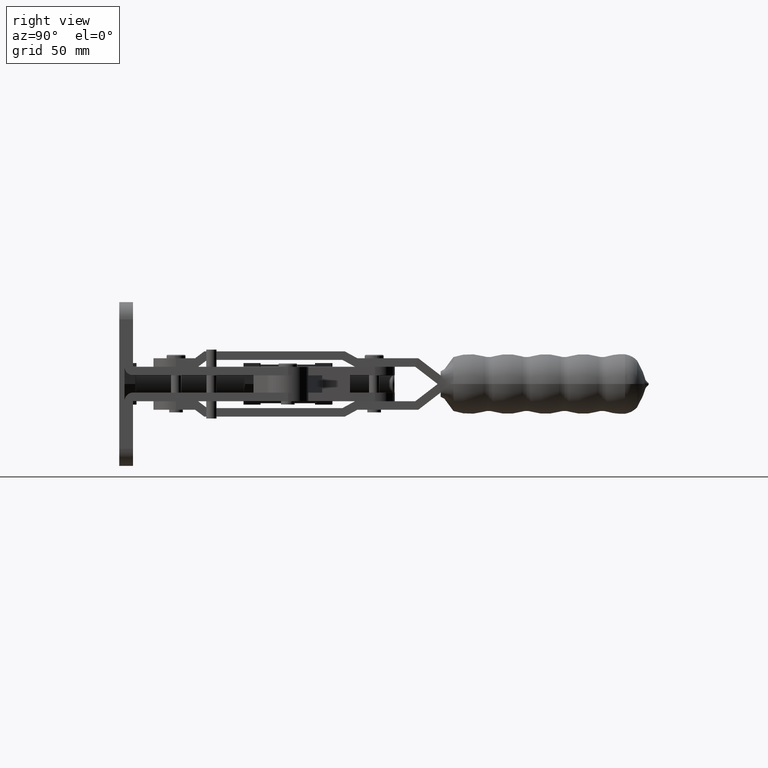
[diagram: clean part render]
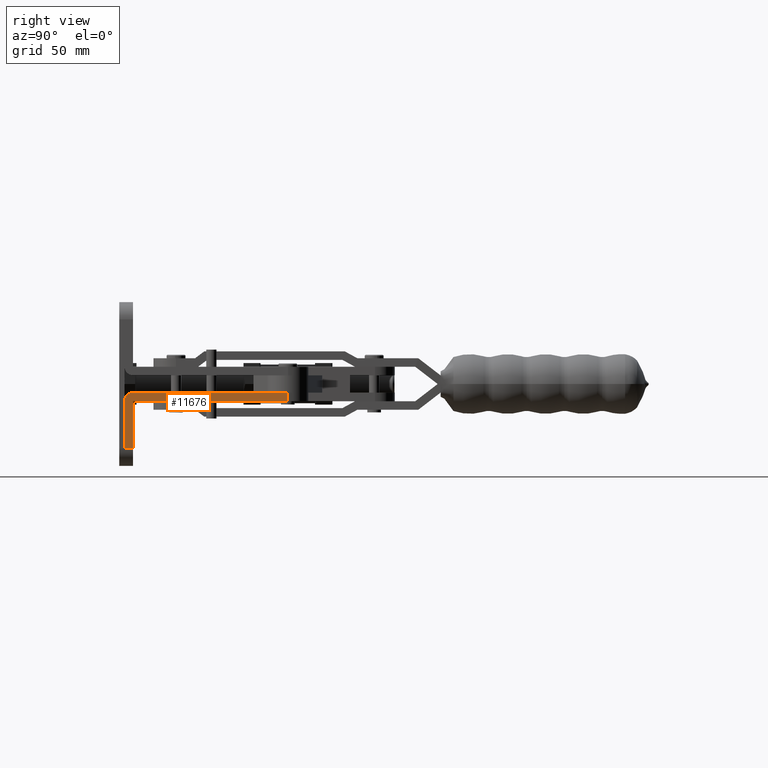
[diagram: same view with one face highlighted and labeled with its STEP entity id]
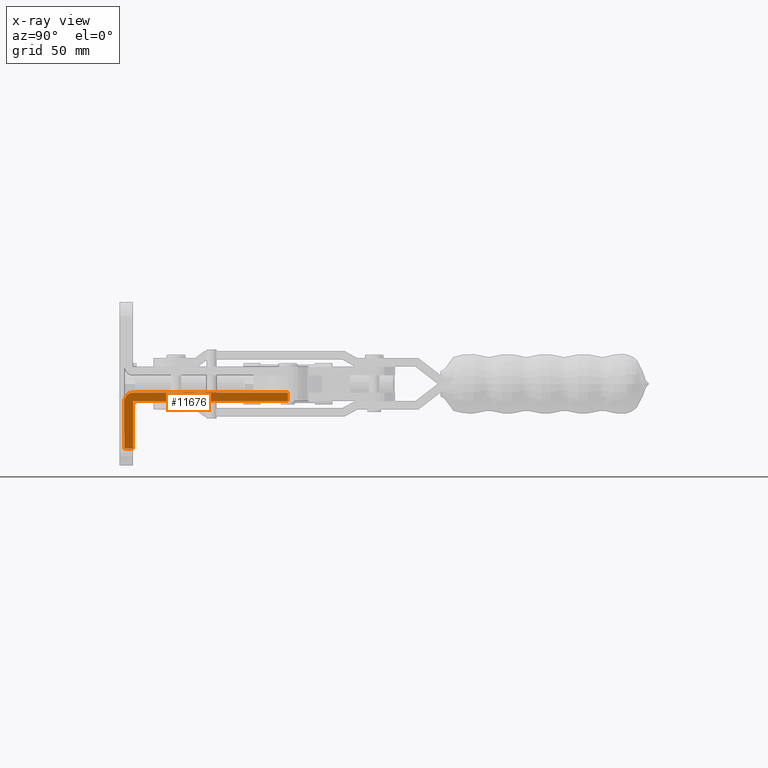
[diagram: x-ray of the same camera — body ghosted, the highlighted face saturated]
A machine part, right view. The second image highlights one B-rep face of the part: STEP entity #11676.
The next image is the same camera in x-ray: the body ghosted, the highlighted face saturated — about 0% of this face is hidden behind the body in this view.
In plain terms, the highlighted planar face has unit normal (-1, -0, 0).
Its self-contained STEP definition (entity closure, byte-faithful):
#141 = CARTESIAN_POINT ( 'NONE',  ( -1.394717674685352500E-016, 4.645343025862013800E-032, -15.00000000000000900 ) ) ;
#315 = ORIENTED_EDGE ( 'NONE', *, *, #1927, .F. ) ;
#473 = LINE ( 'NONE', #13422, #11225 ) ;
#630 = EDGE_CURVE ( 'NONE', #2683, #6494, #11528, .T. ) ;
#673 = ORIENTED_EDGE ( 'NONE', *, *, #3547, .F. ) ;
#685 = EDGE_CURVE ( 'NONE', #9015, #6494, #10864, .T. ) ;
#763 = CARTESIAN_POINT ( 'NONE',  ( 2.632246090677661200E-014, 5.000000000000000000, -42.60000000000005100 ) ) ;
#812 = EDGE_CURVE ( 'NONE', #9575, #2683, #1889, .T. ) ;
#964 = DIRECTION ( 'NONE',  ( 1.387778780781445400E-017, -4.622231866529367400E-033, 1.000000000000000000 ) ) ;
#1091 = VERTEX_POINT ( 'NONE', #5852 ) ;
#1472 = LINE ( 'NONE', #11999, #6670 ) ;
#1677 = CARTESIAN_POINT ( 'NONE',  ( -7.008282842946297900E-017, 2.334227092597330200E-032, -10.00000000000000700 ) ) ;
#1889 = LINE ( 'NONE', #4339, #7417 ) ;
#1895 = EDGE_LOOP ( 'NONE', ( #7563, #315, #3933, #7853, #4836, #3922, #673 ) ) ;
#1927 = EDGE_CURVE ( 'NONE', #2920, #13438, #8019, .T. ) ;
#2020 = CARTESIAN_POINT ( 'NONE',  ( 2.632246090677661200E-014, 5.000000000000000000, -42.60000000000005100 ) ) ;
#2683 = VERTEX_POINT ( 'NONE', #7845 ) ;
#2850 = CARTESIAN_POINT ( 'NONE',  ( -2.442560043114383400E-014, 95.00000000000002800, -15.00000000000000900 ) ) ;
#2920 = VERTEX_POINT ( 'NONE', #2020 ) ;
#3547 = EDGE_CURVE ( 'NONE', #1091, #9015, #5926, .T. ) ;
#3644 = DIRECTION ( 'NONE',  ( -1.000000000000000000, -3.207317652110634800E-050, 1.387778780781445400E-017 ) ) ;
#3751 = CARTESIAN_POINT ( 'NONE',  ( -1.394717674685352500E-016, 5.000000000000000000, -15.00000000000000900 ) ) ;
#3922 = ORIENTED_EDGE ( 'NONE', *, *, #685, .F. ) ;
#3933 = ORIENTED_EDGE ( 'NONE', *, *, #5757, .F. ) ;
#4309 = DIRECTION ( 'NONE',  ( -1.000000000000000000, -3.207317652110634800E-050, 1.387778780781445400E-017 ) ) ;
#4339 = CARTESIAN_POINT ( 'NONE',  ( -1.394717674685352500E-016, 4.645343025862013800E-032, -15.00000000000000900 ) ) ;
#4836 = ORIENTED_EDGE ( 'NONE', *, *, #630, .T. ) ;
#5444 = DIRECTION ( 'NONE',  ( 3.207317652110634800E-050, 1.000000000000000000, 4.622231866529367400E-033 ) ) ;
#5588 = FACE_OUTER_BOUND ( 'NONE', #1895, .T. ) ;
#5757 = EDGE_CURVE ( 'NONE', #9575, #2920, #1472, .T. ) ;
#5852 = CARTESIAN_POINT ( 'NONE',  ( -1.394717674685352500E-016, 4.645343025862013800E-032, -15.00000000000000900 ) ) ;
#5926 = CIRCLE ( 'NONE', #6038, 4.999999999999999100 ) ;
#5938 = VECTOR ( 'NONE', #6598, 1000.000000000000000 ) ;
#6038 = AXIS2_PLACEMENT_3D ( 'NONE', #7308, #3644, #9697 ) ;
#6183 = DIRECTION ( 'NONE',  ( 1.821231995776173800E-016, -1.000000000000000000, -7.149698985147784500E-033 ) ) ;
#6494 = VERTEX_POINT ( 'NONE', #6706 ) ;
#6497 = CARTESIAN_POINT ( 'NONE',  ( 3.677613769070831000E-013, -3.035766082959412400E-015, -42.60000000000006500 ) ) ;
#6598 = DIRECTION ( 'NONE',  ( 1.387778780781445400E-017, -4.622231866529367400E-033, 1.000000000000000000 ) ) ;
#6670 = VECTOR ( 'NONE', #9929, 1000.000000000000000 ) ;
#6706 = CARTESIAN_POINT ( 'NONE',  ( -2.435621149210476200E-014, 95.00000000000002800, -10.00000000000000700 ) ) ;
#7308 = CARTESIAN_POINT ( 'NONE',  ( -1.394717674685352500E-016, 5.000000000000000000, -15.00000000000000900 ) ) ;
#7417 = VECTOR ( 'NONE', #5444, 1000.000000000000000 ) ;
#7563 = ORIENTED_EDGE ( 'NONE', *, *, #10389, .F. ) ;
#7845 = CARTESIAN_POINT ( 'NONE',  ( -2.442560043114383400E-014, 95.00000000000002800, -15.00000000000000900 ) ) ;
#7853 = ORIENTED_EDGE ( 'NONE', *, *, #812, .T. ) ;
#8019 = LINE ( 'NONE', #763, #10824 ) ;
#8056 = VECTOR ( 'NONE', #8536, 1000.000000000000000 ) ;
#8441 = PLANE ( 'NONE',  #10898 ) ;
#8536 = DIRECTION ( 'NONE',  ( 3.207317652110634800E-050, 1.000000000000000000, 4.622231866529367400E-033 ) ) ;
#9015 = VERTEX_POINT ( 'NONE', #11240 ) ;
#9575 = VERTEX_POINT ( 'NONE', #3751 ) ;
#9697 = DIRECTION ( 'NONE',  ( -1.387778780781445700E-017, 8.673617379884037400E-016, -1.000000000000000000 ) ) ;
#9929 = DIRECTION ( 'NONE',  ( 8.375202372114762000E-016, 1.596815642971069100E-031, -1.000000000000000000 ) ) ;
#10389 = EDGE_CURVE ( 'NONE', #13438, #1091, #473, .T. ) ;
#10824 = VECTOR ( 'NONE', #6183, 1000.000000000000000 ) ;
#10864 = LINE ( 'NONE', #1677, #8056 ) ;
#10898 = AXIS2_PLACEMENT_3D ( 'NONE', #141, #4309, #11631 ) ;
#11225 = VECTOR ( 'NONE', #964, 1000.000000000000000 ) ;
#11240 = CARTESIAN_POINT ( 'NONE',  ( -7.008282842946297900E-017, 5.000000000000000000, -10.00000000000000700 ) ) ;
#11528 = LINE ( 'NONE', #2850, #5938 ) ;
#11631 = DIRECTION ( 'NONE',  ( -1.387778780781445400E-017, 4.622231866529367400E-033, -1.000000000000000000 ) ) ;
#11676 = ADVANCED_FACE ( 'NONE', ( #5588 ), #8441, .F. ) ;
#11999 = CARTESIAN_POINT ( 'NONE',  ( 2.632246090677661200E-014, 5.000000000000000000, -42.60000000000005100 ) ) ;
#13422 = CARTESIAN_POINT ( 'NONE',  ( -1.394717674685352500E-016, 4.645343025862013800E-032, -15.00000000000000900 ) ) ;
#13438 = VERTEX_POINT ( 'NONE', #6497 ) ;